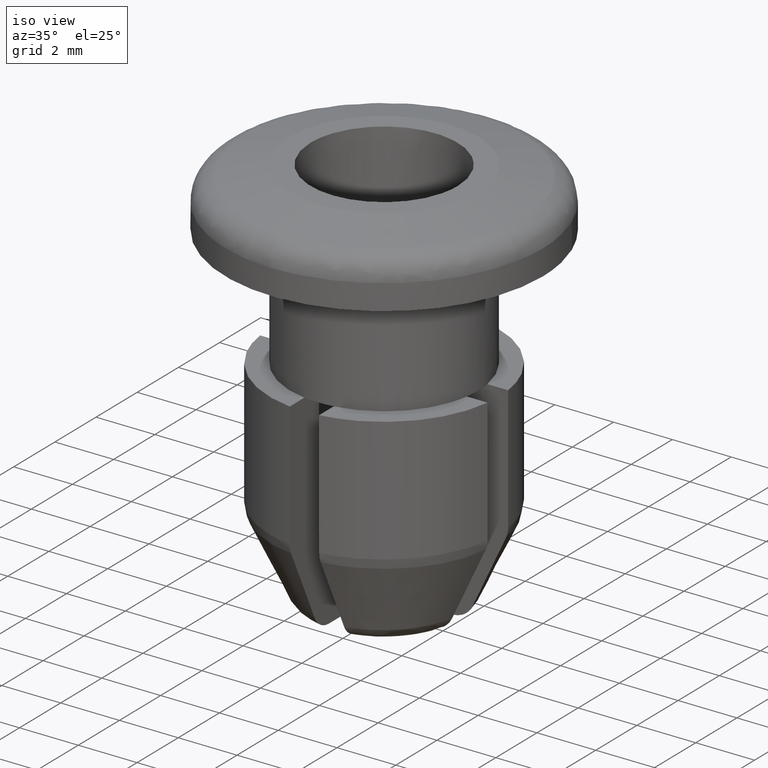
[diagram: clean part render]
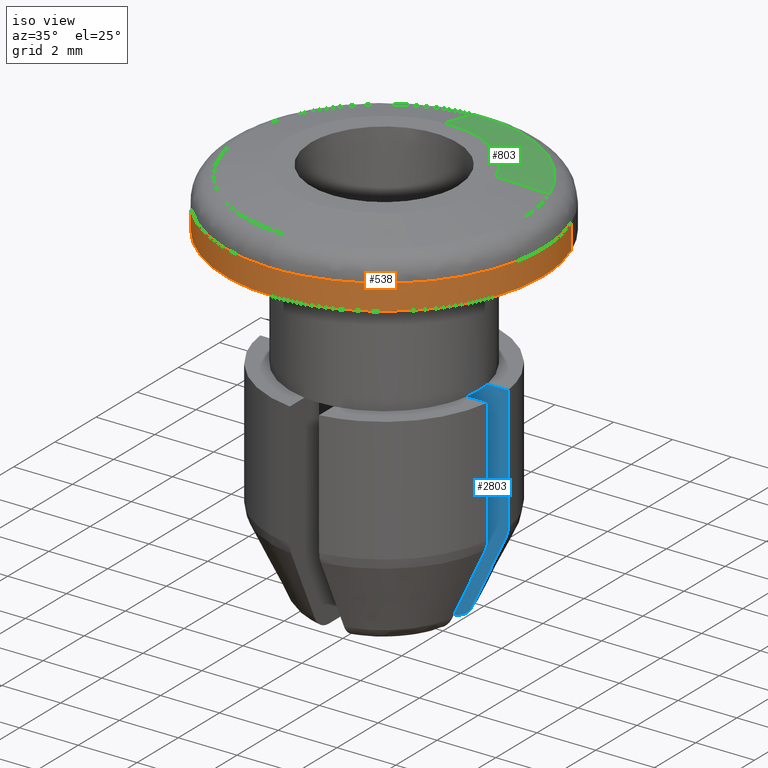
[diagram: same view with three faces highlighted in distinct colors, each labeled with its STEP entity id]
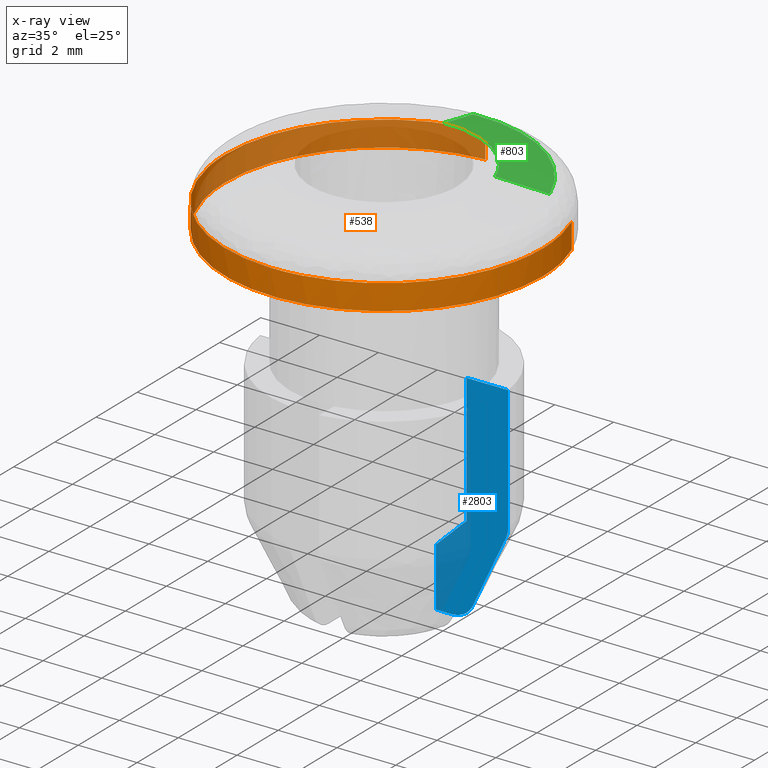
[diagram: x-ray of the same camera — body ghosted, the three highlighted faces saturated]
A machine part, iso view with three faces highlighted in distinct colors.
The next image is the same camera in x-ray (body ghosted, the three faces saturated) — at least one of them is partly hidden behind the body in this view.
Their STEP definitions:

[orange] entity #538 — the highlighted face is a freeform B-spline surface patch.
#372=CARTESIAN_POINT('',(5.055175325393949,1.898737061714487,-1.117474999979123));
#373=CARTESIAN_POINT('',(5.340405704571813,1.139343039263202,-1.117474999979123));
#374=CARTESIAN_POINT('',(5.389927911478081,0.329662113488225,-1.117474999979123));
#375=CARTESIAN_POINT('',(5.719590024966306,-5.060265797989857,-1.117474999979123));
#376=CARTESIAN_POINT('',(0.329662113488225,-5.389927911478081,-1.117474999979123));
#377=CARTESIAN_POINT('',(-5.060265797989857,-5.719590024966306,-1.117474999979123));
#378=CARTESIAN_POINT('',(-5.389927911478081,-0.329662113488225,-1.117474999979123));
#379=CARTESIAN_POINT('',(-5.719590024966306,5.060265797989857,-1.117474999979123));
#380=CARTESIAN_POINT('',(-0.329662113488225,5.389927911478081,-1.117474999979123));
#381=CARTESIAN_POINT('',(5.055175325393949,1.898737061714487,-2.022063125000522));
#382=CARTESIAN_POINT('',(5.340405704571813,1.139343039263202,-2.022063125000523));
#383=CARTESIAN_POINT('',(5.389927911478081,0.329662113488225,-2.022063125000522));
#384=CARTESIAN_POINT('',(5.719590024966306,-5.060265797989857,-2.022063125000523));
#385=CARTESIAN_POINT('',(0.329662113488225,-5.389927911478081,-2.022063125000522));
#386=CARTESIAN_POINT('',(-5.060265797989857,-5.719590024966306,-2.022063125000523));
#387=CARTESIAN_POINT('',(-5.389927911478081,-0.329662113488225,-2.022063125000522));
#388=CARTESIAN_POINT('',(-5.719590024966306,5.060265797989857,-2.022063125000523));
#389=CARTESIAN_POINT('',(-0.329662113488225,5.389927911478081,-2.022063125000522));
#397=(BOUNDED_SURFACE()B_SPLINE_SURFACE(2,1,((#372,#381),(#373,#382),(#374,#383),(#375,#384),(#376,#385),(#377,#386),(#378,#387),(#379,#388),(#380,#389)),.UNSPECIFIED.,.F.,.F.,.U.)B_SPLINE_SURFACE_WITH_KNOTS((3,2,2,2,3),(2,2),(0.0,1.789402589451770,10.736415536710620,19.683428483969479,28.630441431228331),(0.0,1.0),.UNSPECIFIED.)GEOMETRIC_REPRESENTATION_ITEM()RATIONAL_B_SPLINE_SURFACE(((0.906274169979695,0.906274169979695),(0.941421356237309,0.941421356237309),(1.0,1.0),(0.707106781186548,0.707106781186548),(1.0,1.0),(0.707106781186548,0.707106781186548),(1.0,1.0),(0.707106781186548,0.707106781186548),(1.0,1.0)))REPRESENTATION_ITEM('')SURFACE());
#398=CARTESIAN_POINT('',(5.055175482556152,1.898736643287578,-2.000000000000003));
#399=VERTEX_POINT('',#398);
#400=CARTESIAN_POINT('',(5.400000000000000,0.0,-2.0));
#401=VERTEX_POINT('',#400);
#402=CARTESIAN_POINT('',(5.055175482556152,1.898736643287578,-2.000000000000003));
#403=CARTESIAN_POINT('',(5.400000000000000,0.980679423050211,-2.000000000000000));
#404=CARTESIAN_POINT('',(5.400000000000000,0.0,-2.0));
#412=(BOUNDED_CURVE()B_SPLINE_CURVE(2,(#402,#403,#404),.UNSPECIFIED.,.F.,.U.)B_SPLINE_CURVE_WITH_KNOTS((3,3),(0.440284197046563,0.500000000000000),.UNSPECIFIED.)CURVE()GEOMETRIC_REPRESENTATION_ITEM()RATIONAL_B_SPLINE_CURVE((0.893499586634294,0.930038585035752,1.0))REPRESENTATION_ITEM(''));
#413=EDGE_CURVE('',#399,#401,#412,.T.);
#414=ORIENTED_EDGE('',*,*,#413,.F.);
#415=CARTESIAN_POINT('',(5.055175480615818,1.898736648453501,-1.139000000000000));
#416=VERTEX_POINT('',#415);
#417=CARTESIAN_POINT('',(5.055175480615818,1.898736648453501,-1.139000000000000));
#418=CARTESIAN_POINT('',(5.055175482556152,1.898736643287578,-2.000000000000003));
#419=QUASI_UNIFORM_CURVE('',1,(#417,#418),.UNSPECIFIED.,.F.,.U.);
#420=EDGE_CURVE('',#416,#399,#419,.T.);
#421=ORIENTED_EDGE('',*,*,#420,.F.);
#422=CARTESIAN_POINT('',(5.400000000000000,0.0,-1.139000000000000));
#423=VERTEX_POINT('',#422);
#424=CARTESIAN_POINT('',(5.055175480615818,1.898736648453501,-1.139000000000000));
#425=CARTESIAN_POINT('',(5.400000000000000,0.980679428750512,-1.139000000000000));
#426=CARTESIAN_POINT('',(5.400000000000000,0.0,-1.139000000000000));
#434=(BOUNDED_CURVE()B_SPLINE_CURVE(2,(#424,#425,#426),.UNSPECIFIED.,.F.,.U.)B_SPLINE_CURVE_WITH_KNOTS((3,3),(0.440284196723743,0.500000000000000),.UNSPECIFIED.)CURVE()GEOMETRIC_REPRESENTATION_ITEM()RATIONAL_B_SPLINE_CURVE((0.893499586239238,0.930038584657545,1.0))REPRESENTATION_ITEM(''));
#435=EDGE_CURVE('',#416,#423,#434,.T.);
#436=ORIENTED_EDGE('',*,*,#435,.T.);
#437=CARTESIAN_POINT('',(5.291217282874655,-1.078433894779157,-1.138999999979694));
#438=VERTEX_POINT('',#437);
#439=CARTESIAN_POINT('',(5.400000000000000,0.0,-1.139000000000000));
#440=CARTESIAN_POINT('',(5.400000000000001,-0.544703458711215,-1.139000000000000));
#441=CARTESIAN_POINT('',(5.291217282874655,-1.078433894779157,-1.138999999979694));
#449=(BOUNDED_CURVE()B_SPLINE_CURVE(2,(#439,#440,#441),.UNSPECIFIED.,.F.,.U.)B_SPLINE_CURVE_WITH_KNOTS((3,3),(0.500000000000000,0.534232961491090),.UNSPECIFIED.)CURVE()GEOMETRIC_REPRESENTATION_ITEM()RATIONAL_B_SPLINE_CURVE((1.0,0.959893590877431,0.930770871027172))REPRESENTATION_ITEM(''));
#450=EDGE_CURVE('',#423,#438,#449,.T.);
#451=ORIENTED_EDGE('',*,*,#450,.T.);
#452=CARTESIAN_POINT('',(-0.138363639713407,-5.398227070363495,-1.138999999979632));
#453=VERTEX_POINT('',#452);
#454=CARTESIAN_POINT('',(5.291217282874655,-1.078433894779157,-1.138999999979694));
#455=CARTESIAN_POINT('',(4.410413657310253,-5.400000000000000,-1.139000000000000));
#456=CARTESIAN_POINT('',(0.0,-5.400000000000000,-1.139000000000000));
#457=CARTESIAN_POINT('',(-0.069193178619676,-5.400000000000000,-1.139000000000000));
#458=CARTESIAN_POINT('',(-0.138363639713407,-5.398227070363495,-1.138999999979632));
#466=(BOUNDED_CURVE()B_SPLINE_CURVE(2,(#454,#455,#456,#457,#458),.UNSPECIFIED.,.F.,.U.)B_SPLINE_CURVE_WITH_KNOTS((3,2,3),(0.534232961491090,0.750000000000000,0.754506356911943),.UNSPECIFIED.)CURVE()GEOMETRIC_REPRESENTATION_ITEM()RATIONAL_B_SPLINE_CURVE((0.930770871027172,0.747213190309116,1.0,0.994720474475755,0.989631280362213))REPRESENTATION_ITEM(''));
#467=EDGE_CURVE('',#438,#453,#466,.T.);
#468=ORIENTED_EDGE('',*,*,#467,.T.);
#469=CARTESIAN_POINT('',(-5.400000000000000,0.0,-1.139000000000000));
#470=VERTEX_POINT('',#469);
#471=CARTESIAN_POINT('',(-0.138363639713407,-5.398227070363495,-1.138999999979632));
#472=CARTESIAN_POINT('',(-5.400000000000000,-5.263364429690699,-1.139000000000000));
#473=CARTESIAN_POINT('',(-5.400000000000000,0.0,-1.139000000000000));
#481=(BOUNDED_CURVE()B_SPLINE_CURVE(2,(#471,#472,#473),.UNSPECIFIED.,.F.,.U.)B_SPLINE_CURVE_WITH_KNOTS((3,3),(0.754506356911943,1.0),.UNSPECIFIED.)CURVE()GEOMETRIC_REPRESENTATION_ITEM()RATIONAL_B_SPLINE_CURVE((0.989631280362214,0.712386306710792,1.0))REPRESENTATION_ITEM(''));
#482=EDGE_CURVE('',#453,#470,#481,.T.);
#483=ORIENTED_EDGE('',*,*,#482,.T.);
#484=CARTESIAN_POINT('',(-0.329657734720591,5.389928179291412,-1.139000000000000));
#485=VERTEX_POINT('',#484);
#486=CARTESIAN_POINT('',(-5.400000000000000,0.0,-1.139000000000000));
#487=CARTESIAN_POINT('',(-5.400000000000000,5.079816895834536,-1.139000000000000));
#488=CARTESIAN_POINT('',(-0.329657734720591,5.389928179291412,-1.139000000000000));
#496=(BOUNDED_CURVE()B_SPLINE_CURVE(2,(#486,#487,#488),.UNSPECIFIED.,.F.,.U.)B_SPLINE_CURVE_WITH_KNOTS((3,3),(0.0,0.239333102418681),.UNSPECIFIED.)CURVE()GEOMETRIC_REPRESENTATION_ITEM()RATIONAL_B_SPLINE_CURVE((1.0,0.719603829055931,0.976072342098766))REPRESENTATION_ITEM(''));
#497=EDGE_CURVE('',#470,#485,#496,.T.);
#498=ORIENTED_EDGE('',*,*,#497,.T.);
#499=CARTESIAN_POINT('',(-0.329657680015346,5.389928182637238,-2.000000000000011));
#500=VERTEX_POINT('',#499);
#501=CARTESIAN_POINT('',(-0.329657734720591,5.389928179291412,-1.139000000000000));
#502=CARTESIAN_POINT('',(-0.329657680015346,5.389928182637238,-2.000000000000011));
#503=QUASI_UNIFORM_CURVE('',1,(#501,#502),.UNSPECIFIED.,.F.,.U.);
#504=EDGE_CURVE('',#485,#500,#503,.T.);
#505=ORIENTED_EDGE('',*,*,#504,.T.);
#506=CARTESIAN_POINT('',(-5.400000000000000,0.0,-2.0));
#507=VERTEX_POINT('',#506);
#508=CARTESIAN_POINT('',(-5.400000000000000,0.0,-2.0));
#509=CARTESIAN_POINT('',(-5.400000000000000,5.079816947488635,-2.000000000000000));
#510=CARTESIAN_POINT('',(-0.329657680015346,5.389928182637238,-2.000000000000011));
#518=(BOUNDED_CURVE()B_SPLINE_CURVE(2,(#508,#509,#510),.UNSPECIFIED.,.F.,.U.)B_SPLINE_CURVE_WITH_KNOTS((3,3),(0.0,0.239333104169951),.UNSPECIFIED.)CURVE()GEOMETRIC_REPRESENTATION_ITEM()RATIONAL_B_SPLINE_CURVE((1.0,0.719603827004191,0.976072345852074))REPRESENTATION_ITEM(''));
#519=EDGE_CURVE('',#507,#500,#518,.T.);
#520=ORIENTED_EDGE('',*,*,#519,.F.);
#521=CARTESIAN_POINT('',(5.400000000000000,0.0,-2.0));
#522=CARTESIAN_POINT('',(5.400000000000000,-5.400000000000000,-2.000000000000000));
#523=CARTESIAN_POINT('',(0.0,-5.400000000000000,-2.0));
#524=CARTESIAN_POINT('',(-5.400000000000000,-5.400000000000000,-2.000000000000000));
#525=CARTESIAN_POINT('',(-5.400000000000000,0.0,-2.0));
#533=(BOUNDED_CURVE()B_SPLINE_CURVE(2,(#521,#522,#523,#524,#525),.UNSPECIFIED.,.F.,.U.)B_SPLINE_CURVE_WITH_KNOTS((3,2,3),(0.500000000000000,0.750000000000000,1.0),.UNSPECIFIED.)CURVE()GEOMETRIC_REPRESENTATION_ITEM()RATIONAL_B_SPLINE_CURVE((1.0,0.707106781186548,1.0,0.707106781186548,1.0))REPRESENTATION_ITEM(''));
#534=EDGE_CURVE('',#401,#507,#533,.T.);
#535=ORIENTED_EDGE('',*,*,#534,.F.);
#536=EDGE_LOOP('',(#414,#421,#436,#451,#468,#483,#498,#505,#520,#535));
#537=FACE_OUTER_BOUND('',#536,.T.);
#538=ADVANCED_FACE('',(#537),#397,.T.);

[blue] entity #2803 — the highlighted face is a freeform B-spline surface patch.
#126=CARTESIAN_POINT('',(2.449489742783180,0.500000000000000,-10.500363376784501));
#127=VERTEX_POINT('',#126);
#141=CARTESIAN_POINT('',(2.449489742783180,0.500000000000000,-6.099999999999901));
#142=VERTEX_POINT('',#141);
#143=CARTESIAN_POINT('',(2.449489742783180,0.500000000000000,-6.099999999999901));
#144=CARTESIAN_POINT('',(2.449489742783180,0.500000000000000,-10.500363376784501));
#145=QUASI_UNIFORM_CURVE('',1,(#143,#144),.UNSPECIFIED.,.F.,.U.);
#146=EDGE_CURVE('',#142,#127,#145,.T.);
#897=CARTESIAN_POINT('',(3.160696125855820,0.500000000000000,-6.099999999999881));
#898=VERTEX_POINT('',#897);
#1186=CARTESIAN_POINT('',(1.414213562373094,0.500000000000000,-11.500363376784501));
#1187=VERTEX_POINT('',#1186);
#1201=CARTESIAN_POINT('',(2.449489742783180,0.500000000000000,-10.500363376784501));
#1202=CARTESIAN_POINT('',(2.278134806261935,0.500000000000000,-10.668256240538120));
#1203=CARTESIAN_POINT('',(2.106452249628085,0.500000000000000,-10.835812576086161));
#1204=CARTESIAN_POINT('',(1.761745751085505,0.500000000000000,-11.169547389223640));
#1205=CARTESIAN_POINT('',(1.588763213320622,0.500000000000000,-11.335796387666170));
#1206=CARTESIAN_POINT('',(1.414213562373093,0.500000000000000,-11.500363376784501));
#1207=B_SPLINE_CURVE_WITH_KNOTS('',3,(#1201,#1202,#1203,#1204,#1205,#1206),.UNSPECIFIED.,.F.,.U.,(4,2,4),(0.0,0.500000000000000,1.0),.UNSPECIFIED.);
#1208=EDGE_CURVE('',#127,#1187,#1207,.T.);
#1415=CARTESIAN_POINT('',(2.449489742783180,0.500000000000000,-6.099999999999901));
#1416=CARTESIAN_POINT('',(3.160696125855820,0.500000000000000,-6.099999999999881));
#1417=QUASI_UNIFORM_CURVE('',1,(#1415,#1416),.UNSPECIFIED.,.F.,.U.);
#1418=EDGE_CURVE('',#142,#898,#1417,.T.);
#1505=CARTESIAN_POINT('',(1.414213562373094,0.500000000000000,-13.500299999999999));
#1506=VERTEX_POINT('',#1505);
#1507=CARTESIAN_POINT('',(1.959617758645800,0.500000000000000,-13.500299999999999));
#1508=VERTEX_POINT('',#1507);
#1509=CARTESIAN_POINT('',(1.414213562373094,0.500000000000000,-13.500299999999999));
#1510=CARTESIAN_POINT('',(1.959617758645800,0.500000000000000,-13.500299999999999));
#1511=QUASI_UNIFORM_CURVE('',1,(#1509,#1510),.UNSPECIFIED.,.F.,.U.);
#1512=EDGE_CURVE('',#1506,#1508,#1511,.T.);
#1725=CARTESIAN_POINT('',(2.659426441461120,0.500000000000000,-13.058784187287420));
#1726=VERTEX_POINT('',#1725);
#1727=CARTESIAN_POINT('',(1.959617758645800,0.500000000000000,-13.500299999999999));
#1728=CARTESIAN_POINT('',(1.995870260834213,0.500000000000000,-13.500299999999999));
#1729=CARTESIAN_POINT('',(2.032074988127340,0.500000000000000,-13.497844263011711));
#1730=CARTESIAN_POINT('',(2.104385885043721,0.500000000000000,-13.487866703302871));
#1731=CARTESIAN_POINT('',(2.140582571796804,0.500000000000000,-13.480273188047519));
#1732=CARTESIAN_POINT('',(2.210582539605143,0.500000000000000,-13.460385630809400));
#1733=CARTESIAN_POINT('',(2.244676879156075,0.500000000000000,-13.448069990180750));
#1734=CARTESIAN_POINT('',(2.311047923019859,0.500000000000000,-13.418678363481970));
#1735=CARTESIAN_POINT('',(2.343499881206968,0.500000000000000,-13.401491538657289));
#1736=CARTESIAN_POINT('',(2.436762051251562,0.500000000000000,-13.343091250395910));
#1737=CARTESIAN_POINT('',(2.492105625441049,0.500000000000000,-13.296233015496689));
#1738=CARTESIAN_POINT('',(2.564766211409184,0.500000000000000,-13.213933349785490));
#1739=CARTESIAN_POINT('',(2.587089104371746,0.500000000000000,-13.184554053184931));
#1740=CARTESIAN_POINT('',(2.626723384111980,0.500000000000000,-13.123628106619501));
#1741=CARTESIAN_POINT('',(2.644237852533169,0.500000000000000,-13.091863515307750));
#1742=CARTESIAN_POINT('',(2.659426441461120,0.500000000000000,-13.058784187287420));
#1743=B_SPLINE_CURVE_WITH_KNOTS('',3,(#1727,#1728,#1729,#1730,#1731,#1732,#1733,#1734,#1735,#1736,#1737,#1738,#1739,#1740,#1741,#1742),.UNSPECIFIED.,.F.,.U.,(4,2,2,2,2,2,2,4),(0.0,0.124999999999999,0.249999999999999,0.374999999999998,0.499999999999997,0.749999999999998,0.874999999999999,1.0),.UNSPECIFIED.);
#1744=EDGE_CURVE('',#1508,#1726,#1743,.T.);
#2023=CARTESIAN_POINT('',(3.796920079485475,0.500000000000000,-10.650999999999881));
#2024=VERTEX_POINT('',#2023);
#2025=CARTESIAN_POINT('',(2.659426441461120,0.500000000000000,-13.058784187287420));
#2026=CARTESIAN_POINT('',(3.040188986431455,0.500000000000000,-12.256946791583839));
#2027=CARTESIAN_POINT('',(3.418877663586606,0.500000000000000,-11.454123765753140));
#2028=CARTESIAN_POINT('',(3.796920079485477,0.500000000000000,-10.650999999999881));
#2029=QUASI_UNIFORM_CURVE('',3,(#2025,#2026,#2027,#2028),.UNSPECIFIED.,.F.,.U.);
#2030=EDGE_CURVE('',#1726,#2024,#2029,.T.);
#2230=CARTESIAN_POINT('',(3.867815921162755,0.500000000000000,-10.333900000000000));
#2231=VERTEX_POINT('',#2230);
#2232=CARTESIAN_POINT('',(3.796920079485509,0.500000000000000,-10.650999999999890));
#2233=CARTESIAN_POINT('',(3.820125297994603,0.500000000000000,-10.601702191895900));
#2234=CARTESIAN_POINT('',(3.837839464490058,0.500000000000000,-10.550220786712851));
#2235=CARTESIAN_POINT('',(3.861895604854134,0.500000000000000,-10.442735657756250));
#2236=CARTESIAN_POINT('',(3.867832769548388,0.500000000000000,-10.388334337714850));
#2237=CARTESIAN_POINT('',(3.867815921162755,0.500000000000000,-10.333900000000000));
#2238=B_SPLINE_CURVE_WITH_KNOTS('',3,(#2232,#2233,#2234,#2235,#2236,#2237),.UNSPECIFIED.,.F.,.U.,(4,2,4),(0.0,0.500000000000000,1.0),.UNSPECIFIED.);
#2239=EDGE_CURVE('',#2024,#2231,#2238,.T.);
#2468=CARTESIAN_POINT('',(3.867815921162740,0.500000000000000,-6.099999999999901));
#2469=VERTEX_POINT('',#2468);
#2470=CARTESIAN_POINT('',(3.867815921162755,0.500000000000000,-10.333900000000000));
#2471=CARTESIAN_POINT('',(3.867815921162740,0.500000000000000,-6.099999999999901));
#2472=QUASI_UNIFORM_CURVE('',1,(#2470,#2471),.UNSPECIFIED.,.F.,.U.);
#2473=EDGE_CURVE('',#2231,#2469,#2472,.T.);
#2639=CARTESIAN_POINT('',(3.160696125855820,0.500000000000000,-6.099999999999881));
#2640=CARTESIAN_POINT('',(3.867815921162740,0.500000000000000,-6.099999999999901));
#2641=QUASI_UNIFORM_CURVE('',1,(#2639,#2640),.UNSPECIFIED.,.F.,.U.);
#2642=EDGE_CURVE('',#898,#2469,#2641,.T.);
#2782=CARTESIAN_POINT('',(1.291656106274444,0.500000000000000,-5.730354890405649));
#2783=CARTESIAN_POINT('',(1.291656106274444,0.500000000000000,-13.869945175758071));
#2784=CARTESIAN_POINT('',(3.990373421135234,0.500000000000000,-5.730354890405649));
#2785=CARTESIAN_POINT('',(3.990373421135234,0.500000000000000,-13.869945175758071));
#2786=B_SPLINE_SURFACE_WITH_KNOTS('',1,1,((#2782,#2784),(#2783,#2785)),.UNSPECIFIED.,.F.,.F.,.U.,(2,2),(2,2),(0.0,8.139590285352423),(0.0,2.698717314860790),.UNSPECIFIED.);
#2787=ORIENTED_EDGE('',*,*,#1418,.F.);
#2788=ORIENTED_EDGE('',*,*,#146,.T.);
#2789=ORIENTED_EDGE('',*,*,#1208,.T.);
#2790=CARTESIAN_POINT('',(1.414213562373094,0.500000000000000,-11.500363376784501));
#2791=CARTESIAN_POINT('',(1.414213562373094,0.500000000000000,-13.500299999999999));
#2792=QUASI_UNIFORM_CURVE('',1,(#2790,#2791),.UNSPECIFIED.,.F.,.U.);
#2793=EDGE_CURVE('',#1187,#1506,#2792,.T.);
#2794=ORIENTED_EDGE('',*,*,#2793,.T.);
#2795=ORIENTED_EDGE('',*,*,#1512,.T.);
#2796=ORIENTED_EDGE('',*,*,#1744,.T.);
#2797=ORIENTED_EDGE('',*,*,#2030,.T.);
#2798=ORIENTED_EDGE('',*,*,#2239,.T.);
#2799=ORIENTED_EDGE('',*,*,#2473,.T.);
#2800=ORIENTED_EDGE('',*,*,#2642,.F.);
#2801=EDGE_LOOP('',(#2787,#2788,#2789,#2794,#2795,#2796,#2797,#2798,#2799,#2800));
#2802=FACE_OUTER_BOUND('',#2801,.T.);
#2803=ADVANCED_FACE('',(#2802),#2786,.T.);

[green] entity #803 — the highlighted face is a freeform B-spline surface patch.
#614=CARTESIAN_POINT('',(4.460727903092842,1.675461056579439,-0.356201380946647));
#615=VERTEX_POINT('',#614);
#631=CARTESIAN_POINT('',(2.995659452080346,1.125177518071799,-4.458431E-013));
#632=VERTEX_POINT('',#631);
#633=CARTESIAN_POINT('',(2.995659452080346,1.125177518071799,-4.458431E-013));
#634=CARTESIAN_POINT('',(4.460727903092842,1.675461056579439,-0.356201380946647));
#635=QUASI_UNIFORM_CURVE('',1,(#633,#634),.UNSPECIFIED.,.F.,.U.);
#636=EDGE_CURVE('',#632,#615,#635,.T.);
#670=CARTESIAN_POINT('',(-0.195355326522164,3.194031354950947,-3.685828E-013));
#671=VERTEX_POINT('',#670);
#685=CARTESIAN_POINT('',(-0.290896535451600,4.756116313044315,-0.356201380946615));
#686=VERTEX_POINT('',#685);
#687=CARTESIAN_POINT('',(-0.195355326522164,3.194031354950947,-3.685828E-013));
#688=CARTESIAN_POINT('',(-0.290896535451600,4.756116313044315,-0.356201380946615));
#689=QUASI_UNIFORM_CURVE('',1,(#687,#688),.UNSPECIFIED.,.F.,.U.);
#690=EDGE_CURVE('',#671,#686,#689,.T.);
#755=CARTESIAN_POINT('',(-0.192966796288025,3.154979230995207,0.008905034524213));
#756=CARTESIAN_POINT('',(2.137919634141108,3.297542352353460,0.008905034524213));
#757=CARTESIAN_POINT('',(2.959032740807782,1.111420429589253,0.008905034524213));
#758=CARTESIAN_POINT('',(-0.293344778931245,4.796144740194292,-0.365329041355827));
#759=CARTESIAN_POINT('',(3.250028370237332,5.012866726168312,-0.365329041355827));
#760=CARTESIAN_POINT('',(4.498270282245640,1.689562072279477,-0.365329041355827));
#768=(BOUNDED_SURFACE()B_SPLINE_SURFACE(2,1,((#755,#758),(#756,#759),(#757,#760)),.UNSPECIFIED.,.F.,.F.,.U.)B_SPLINE_SURFACE_WITH_KNOTS((3,3),(2,2),(0.0,6.325677286061148),(0.0,1.0),.UNSPECIFIED.)GEOMETRIC_REPRESENTATION_ITEM()RATIONAL_B_SPLINE_SURFACE(((1.0,1.0),(0.765685424949238,0.765685424949238),(0.906274169979695,0.906274169979695)))REPRESENTATION_ITEM('')SURFACE());
#769=CARTESIAN_POINT('',(-0.290896535451600,4.756116313044315,-0.356201380946614));
#770=CARTESIAN_POINT('',(-0.145584039518580,4.765004006035679,-0.356201380946426));
#771=CARTESIAN_POINT('',(0.0,4.765004006035680,-0.356201380946426));
#772=CARTESIAN_POINT('',(3.300287498088277,4.765004006035681,-0.356201380946426));
#773=CARTESIAN_POINT('',(4.460727903092841,1.675461056579439,-0.356201380946647));
#781=(BOUNDED_CURVE()B_SPLINE_CURVE(2,(#769,#770,#771,#772,#773),.UNSPECIFIED.,.F.,.U.)B_SPLINE_CURVE_WITH_KNOTS((3,2,3),(0.239332962241582,0.250000000000000,0.440284170898265),.UNSPECIFIED.)CURVE()GEOMETRIC_REPRESENTATION_ITEM()RATIONAL_B_SPLINE_CURVE((0.976072041672373,0.987502787902929,1.0,0.777068226785432,0.893499554634977))REPRESENTATION_ITEM(''));
#782=EDGE_CURVE('',#686,#615,#781,.T.);
#783=ORIENTED_EDGE('',*,*,#782,.F.);
#784=ORIENTED_EDGE('',*,*,#690,.F.);
#785=CARTESIAN_POINT('',(-0.195355326522164,3.194031354950947,-3.685828E-013));
#786=CARTESIAN_POINT('',(-0.097768842566038,3.200000000000000,0.0));
#787=CARTESIAN_POINT('',(0.0,3.200000000000000,0.0));
#788=CARTESIAN_POINT('',(2.216350706193565,3.200000000000001,0.0));
#789=CARTESIAN_POINT('',(2.995659452080347,1.125177518071799,-4.458431E-013));
#797=(BOUNDED_CURVE()B_SPLINE_CURVE(2,(#785,#786,#787,#788,#789),.UNSPECIFIED.,.F.,.U.)B_SPLINE_CURVE_WITH_KNOTS((3,2,3),(0.239332962240831,0.250000000000000,0.440284170897003),.UNSPECIFIED.)CURVE()GEOMETRIC_REPRESENTATION_ITEM()RATIONAL_B_SPLINE_CURVE((0.976072041670765,0.987502787902050,1.0,0.777068226786911,0.893499554633432))REPRESENTATION_ITEM(''));
#798=EDGE_CURVE('',#671,#632,#797,.T.);
#799=ORIENTED_EDGE('',*,*,#798,.T.);
#800=ORIENTED_EDGE('',*,*,#636,.T.);
#801=EDGE_LOOP('',(#783,#784,#799,#800));
#802=FACE_OUTER_BOUND('',#801,.T.);
#803=ADVANCED_FACE('',(#802),#768,.T.);